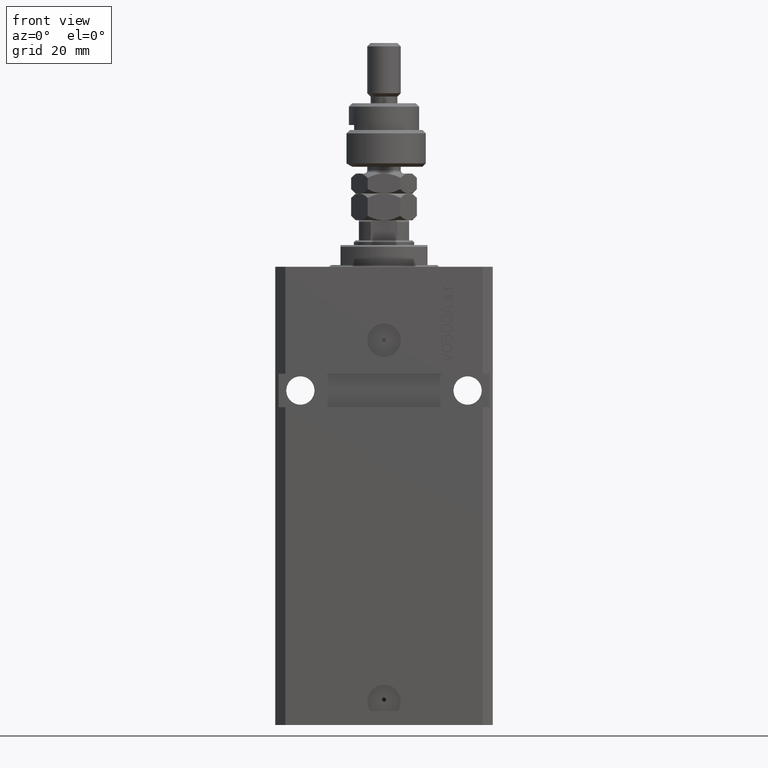
[diagram: clean part render]
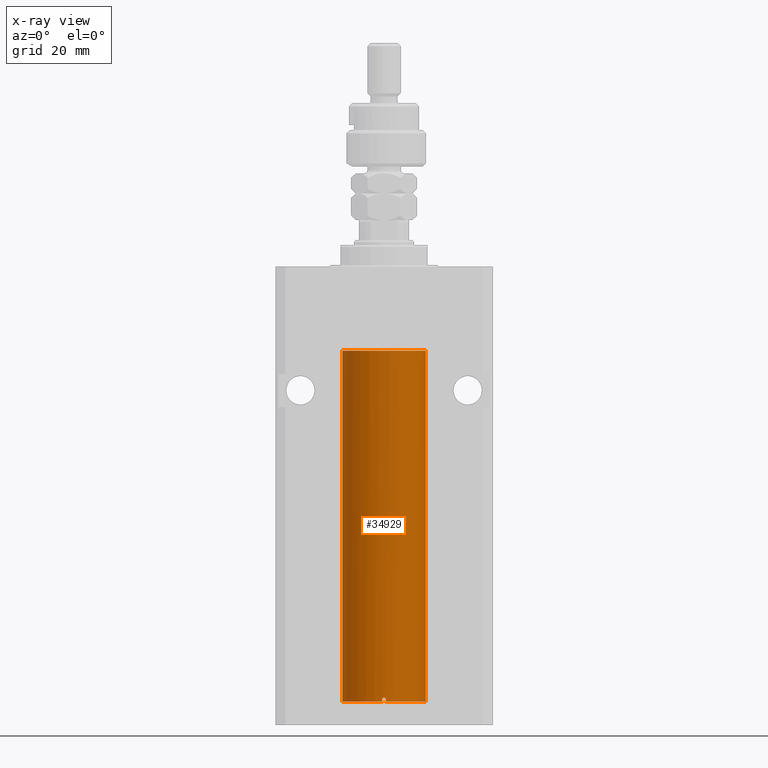
[diagram: x-ray — body ghosted, one internal face saturated and labeled with its STEP entity id]
A machine part, front view, then the same camera in x-ray: the body is ghosted and one INTERNAL B-rep face — a face not visible from any outside direction — is saturated and labeled: STEP entity #34929.
In plain terms, the highlighted cylindrical surface (partial cylindrical patch) has radius 12.5 mm, axis along (0, 0, 1).
Its self-contained STEP definition (entity closure, byte-faithful):
#670 = CARTESIAN_POINT ( 'NONE',  ( -0.5573321180045979206, -12.48810161786719419, -129.8014823860453646 ) ) ;
#1096 = CARTESIAN_POINT ( 'NONE',  ( 12.48436522214885080, -0.6250000000001766365, -125.1648435048619064 ) ) ;
#1135 = ORIENTED_EDGE ( 'NONE', *, *, #5912, .T. ) ;
#1220 = LINE ( 'NONE', #42700, #32509 ) ;
#1598 = CARTESIAN_POINT ( 'NONE',  ( 12.49626862995824261, -0.3264790874448437741, -124.4426634523339601 ) ) ;
#1618 = FACE_OUTER_BOUND ( 'NONE', #27421, .T. ) ;
#1980 = CARTESIAN_POINT ( 'NONE',  ( 0.6250000000080510043, -12.48436522214846001, -129.4749999999992269 ) ) ;
#2105 = CARTESIAN_POINT ( 'NONE',  ( -0.1650848372272809561, -12.50000000000000533, -130.0999999999999943 ) ) ;
#2337 = ORIENTED_EDGE ( 'NONE', *, *, #41780, .T. ) ;
#2365 = VERTEX_POINT ( 'NONE', #41068 ) ;
#3061 = CARTESIAN_POINT ( 'NONE',  ( 1.470104640658485388E-15, -12.50000000000000000, -130.0999999999999943 ) ) ;
#3567 = ORIENTED_EDGE ( 'NONE', *, *, #34443, .T. ) ;
#4589 = AXIS2_PLACEMENT_3D ( 'NONE', #20704, #19744, #20216 ) ;
#5007 = CARTESIAN_POINT ( 'NONE',  ( 12.48436522214885436, -0.6250000000001731948, -125.0000000000000000 ) ) ;
#5258 = B_SPLINE_CURVE_WITH_KNOTS ( 'NONE', 3,
 ( #16105, #15868, #1598, #19491, #41943, #5007 ),
 .UNSPECIFIED., .F., .F.,
 ( 4, 2, 4 ),
 ( 0.001954339881912483395, 0.002443067948757230486, 0.002931796015601977577 ),
 .UNSPECIFIED. ) ;
#5482 = CARTESIAN_POINT ( 'NONE',  ( 0.3151108292487771467, -12.49625698805481022, -130.0209369568817976 ) ) ;
#5712 = VERTEX_POINT ( 'NONE', #32192 ) ;
#5727 = B_SPLINE_CURVE_WITH_KNOTS ( 'NONE', 3,
 ( #1980, #20090, #28071, #13587, #42317, #30309, #42800, #34821, #6104, #20818, #27584, #45042 ),
 .UNSPECIFIED., .F., .F.,
 ( 4, 2, 2, 2, 2, 4 ),
 ( 0.0009773924225144152694, 0.001221692871650373541, 0.001465993320786332030, 0.001954594219058248573, 0.002443195117330164250, 0.002931796015602080793 ),
 .UNSPECIFIED. ) ;
#5797 = CARTESIAN_POINT ( 'NONE',  ( 12.50000000000000000, 5.055633433180616021E-15, -125.6250000000000142 ) ) ;
#5912 = EDGE_CURVE ( 'NONE', #17413, #8233, #1220, .T. ) ;
#6007 = DIRECTION ( 'NONE',  ( -0.000000000000000000, -0.000000000000000000, 1.000000000000000000 ) ) ;
#6104 = CARTESIAN_POINT ( 'NONE',  ( -0.3266214369556185160, -12.49626442692393802, -128.9177587996186958 ) ) ;
#6840 = CARTESIAN_POINT ( 'NONE',  ( -12.50000000000000000, -1.890568805888175348E-14, -124.3750000000000000 ) ) ;
#7064 = LINE ( 'NONE', #47611, #16391 ) ;
#7163 = VECTOR ( 'NONE', #41555, 1000.000000000000000 ) ;
#7752 = EDGE_CURVE ( 'NONE', #16243, #5712, #47229, .T. ) ;
#7953 = CIRCLE ( 'NONE', #42541, 12.50000000000000000 ) ;
#7958 = CARTESIAN_POINT ( 'NONE',  ( -0.6250000000000023315, -12.48436522214886324, -129.4749999999999943 ) ) ;
#8233 = VERTEX_POINT ( 'NONE', #32290 ) ;
#8853 = AXIS2_PLACEMENT_3D ( 'NONE', #37199, #23164, #44438 ) ;
#8941 = EDGE_CURVE ( 'NONE', #39606, #32330, #7064, .T. ) ;
#10412 = ORIENTED_EDGE ( 'NONE', *, *, #43356, .T. ) ;
#10637 = CARTESIAN_POINT ( 'NONE',  ( -12.50000000000000000, -1.890568805888175348E-14, -124.3750000000000000 ) ) ;
#11024 = CARTESIAN_POINT ( 'NONE',  ( 0.6250000000080510043, -12.48436522214846001, -129.4749999999992269 ) ) ;
#11282 = CARTESIAN_POINT ( 'NONE',  ( 12.50000000000000178, -0.1650848372273190368, -125.6250000000000426 ) ) ;
#11514 = CARTESIAN_POINT ( 'NONE',  ( 12.48810161786718709, -0.5573321180047493550, -125.3264823860453845 ) ) ;
#11894 = EDGE_CURVE ( 'NONE', #30153, #40642, #5258, .T. ) ;
#12051 = CARTESIAN_POINT ( 'NONE',  ( -12.50000000000000000, 1.530808498934191521E-15, -25.10000000000000142 ) ) ;
#12170 = CARTESIAN_POINT ( 'NONE',  ( 12.50000000000000000, 0.000000000000000000, -130.0999999999999943 ) ) ;
#12532 = VERTEX_POINT ( 'NONE', #5797 ) ;
#12666 = CARTESIAN_POINT ( 'NONE',  ( 0.6250000000080510043, -12.48436522214846001, -129.4749999999992269 ) ) ;
#13451 = CARTESIAN_POINT ( 'NONE',  ( 0.5573988467447082984, -12.48809900631781211, -129.8014014793547801 ) ) ;
#13587 = CARTESIAN_POINT ( 'NONE',  ( 0.5460961315382579784, -12.48810487413754089, -129.1601782428394074 ) ) ;
#14164 = CARTESIAN_POINT ( 'NONE',  ( 0.6250000000003168577, -12.48436522214885080, -129.6381274754031381 ) ) ;
#14249 = EDGE_CURVE ( 'NONE', #5712, #12532, #45011, .T. ) ;
#14485 = CARTESIAN_POINT ( 'NONE',  ( -12.50000000000017941, 3.883381307462307207E-13, -125.6250000000035953 ) ) ;
#14934 = ORIENTED_EDGE ( 'NONE', *, *, #34729, .T. ) ;
#15868 = CARTESIAN_POINT ( 'NONE',  ( 12.50000000000000355, -0.1632239044005757977, -124.3749999999997868 ) ) ;
#16105 = CARTESIAN_POINT ( 'NONE',  ( 12.50000000000017941, 3.868073647803008074E-13, -124.3749999999964047 ) ) ;
#16243 = VERTEX_POINT ( 'NONE', #3061 ) ;
#16391 = VECTOR ( 'NONE', #21543, 1000.000000000000000 ) ;
#16575 = B_SPLINE_CURVE_WITH_KNOTS ( 'NONE', 3,
 ( #44590, #1096, #11514, #37109, #11282, #30564 ),
 .UNSPECIFIED., .F., .F.,
 ( 4, 2, 4 ),
 ( 0.002931796015601977577, 0.003420015203430309698, 0.003908234391258641818 ),
 .UNSPECIFIED. ) ;
#16604 = CYLINDRICAL_SURFACE ( 'NONE', #4589, 12.50000000000000000 ) ;
#16673 = EDGE_CURVE ( 'NONE', #17413, #16243, #27337, .T. ) ;
#17198 = DIRECTION ( 'NONE',  ( 0.000000000000000000, 0.000000000000000000, 1.000000000000000000 ) ) ;
#17413 = VERTEX_POINT ( 'NONE', #27299 ) ;
#18637 = CARTESIAN_POINT ( 'NONE',  ( 12.50000000000000000, 0.000000000000000000, -130.0999999999999943 ) ) ;
#19491 = CARTESIAN_POINT ( 'NONE',  ( 12.48811067843434230, -0.5571444604332019823, -124.6731932189935463 ) ) ;
#19744 = DIRECTION ( 'NONE',  ( -0.000000000000000000, -0.000000000000000000, 1.000000000000000000 ) ) ;
#20090 = CARTESIAN_POINT ( 'NONE',  ( 0.6249999999998495648, -12.48436522214887034, -129.3934521701002325 ) ) ;
#20216 = DIRECTION ( 'NONE',  ( 1.000000000000000000, 0.000000000000000000, 0.000000000000000000 ) ) ;
#20682 = CARTESIAN_POINT ( 'NONE',  ( 1.470104640658485388E-15, -12.50000000000000000, -130.0999999999999943 ) ) ;
#20704 = CARTESIAN_POINT ( 'NONE',  ( 0.000000000000000000, 0.000000000000000000, -130.0999999999999943 ) ) ;
#20818 = CARTESIAN_POINT ( 'NONE',  ( -0.5571821530518588084, -12.48810851326189031, -129.1482778446419672 ) ) ;
#21053 = DIRECTION ( 'NONE',  ( 1.000000000000000000, 0.000000000000000000, 0.000000000000000000 ) ) ;
#21543 = DIRECTION ( 'NONE',  ( -0.000000000000000000, -0.000000000000000000, 1.000000000000000000 ) ) ;
#21762 = CARTESIAN_POINT ( 'NONE',  ( 0.000000000000000000, 0.000000000000000000, -25.10000000000000142 ) ) ;
#21793 = B_SPLINE_CURVE_WITH_KNOTS ( 'NONE', 3,
 ( #14485, #43704, #28975, #36219, #32597, #47558, #24632, #29207, #25582, #10637 ),
 .UNSPECIFIED., .F., .F.,
 ( 4, 2, 2, 2, 4 ),
 ( 0.001954339881912777865, 0.002442813509249231168, 0.002931287136585684037, 0.003419760763922137341, 0.003908234391258590644 ),
 .UNSPECIFIED. ) ;
#23164 = DIRECTION ( 'NONE',  ( 0.000000000000000000, 0.000000000000000000, 1.000000000000000000 ) ) ;
#23218 = CARTESIAN_POINT ( 'NONE',  ( 0.000000000000000000, 0.000000000000000000, -130.0999999999999943 ) ) ;
#23820 = CARTESIAN_POINT ( 'NONE',  ( 0.08262306818363997218, -12.50000000000000178, -130.1000000000000227 ) ) ;
#23830 = ORIENTED_EDGE ( 'NONE', *, *, #11894, .T. ) ;
#24632 = CARTESIAN_POINT ( 'NONE',  ( -12.48809300548636081, -0.5575284115737683122, -124.6738082297086123 ) ) ;
#25582 = CARTESIAN_POINT ( 'NONE',  ( -12.50000000000000178, -0.1651708725693049051, -124.3750000000000000 ) ) ;
#26390 = AXIS2_PLACEMENT_3D ( 'NONE', #23218, #38669, #45669 ) ;
#26823 = LINE ( 'NONE', #18637, #7163 ) ;
#27299 = CARTESIAN_POINT ( 'NONE',  ( -12.50000000000000000, 1.530808498934191521E-15, -130.0999999999999943 ) ) ;
#27337 = CIRCLE ( 'NONE', #8853, 12.50000000000000000 ) ;
#27421 = EDGE_LOOP ( 'NONE', ( #41722, #1135, #14934, #47792, #10412, #33538, #23830, #44623, #35746, #35828, #2337, #3567, #28532 ) ) ;
#27462 = CARTESIAN_POINT ( 'NONE',  ( 1.470104640658485388E-15, -12.50000000000000000, -130.0999999999999943 ) ) ;
#27584 = CARTESIAN_POINT ( 'NONE',  ( -0.6250000000000021094, -12.48436522214886146, -129.3100276135026832 ) ) ;
#28055 = VECTOR ( 'NONE', #33677, 1000.000000000000000 ) ;
#28071 = CARTESIAN_POINT ( 'NONE',  ( 0.6087772866342663347, -12.48520622767670396, -129.3115254180584088 ) ) ;
#28532 = ORIENTED_EDGE ( 'NONE', *, *, #30508, .T. ) ;
#28975 = CARTESIAN_POINT ( 'NONE',  ( -12.49627279065598628, -0.3263143231498909502, -125.5574072589037371 ) ) ;
#29207 = CARTESIAN_POINT ( 'NONE',  ( -12.49625500642807729, -0.3269795983093208847, -124.4429332688023351 ) ) ;
#30153 = VERTEX_POINT ( 'NONE', #44447 ) ;
#30309 = CARTESIAN_POINT ( 'NONE',  ( 0.3251408448057627743, -12.49631649875954409, -128.9162955772238206 ) ) ;
#30508 = EDGE_CURVE ( 'NONE', #31849, #16243, #47429, .T. ) ;
#30564 = CARTESIAN_POINT ( 'NONE',  ( 12.50000000000000000, 5.055633433180616021E-15, -125.6250000000000142 ) ) ;
#31849 = VERTEX_POINT ( 'NONE', #43597 ) ;
#32192 = CARTESIAN_POINT ( 'NONE',  ( 12.50000000000000000, 0.000000000000000000, -130.0999999999999943 ) ) ;
#32290 = CARTESIAN_POINT ( 'NONE',  ( -12.50000000000017941, 3.883381307462307207E-13, -125.6250000000035953 ) ) ;
#32330 = VERTEX_POINT ( 'NONE', #12051 ) ;
#32509 = VECTOR ( 'NONE', #6007, 1000.000000000000000 ) ;
#32597 = CARTESIAN_POINT ( 'NONE',  ( -12.48437204107163012, -0.6248637920779658295, -125.1654228524065360 ) ) ;
#33538 = ORIENTED_EDGE ( 'NONE', *, *, #45685, .F. ) ;
#33677 = DIRECTION ( 'NONE',  ( -0.000000000000000000, -0.000000000000000000, 1.000000000000000000 ) ) ;
#34443 = EDGE_CURVE ( 'NONE', #42087, #31849, #5727, .T. ) ;
#34470 = CARTESIAN_POINT ( 'NONE',  ( -0.3268155536464767974, -12.49625914831440454, -130.0321368162777560 ) ) ;
#34729 = EDGE_CURVE ( 'NONE', #8233, #39606, #21793, .T. ) ;
#34821 = CARTESIAN_POINT ( 'NONE',  ( -0.1634321124498667177, -12.49999667087055322, -128.8500665825944793 ) ) ;
#34929 = ADVANCED_FACE ( 'NONE', ( #1618 ), #16604, .F. ) ;
#35746 = ORIENTED_EDGE ( 'NONE', *, *, #14249, .F. ) ;
#35828 = ORIENTED_EDGE ( 'NONE', *, *, #7752, .F. ) ;
#36219 = CARTESIAN_POINT ( 'NONE',  ( -12.48811925907523879, -0.5569488909189619363, -125.3270960450317801 ) ) ;
#36392 = EDGE_CURVE ( 'NONE', #40642, #12532, #16575, .T. ) ;
#37109 = CARTESIAN_POINT ( 'NONE',  ( 12.49625914831439744, -0.3268155536465562339, -125.5571368162777475 ) ) ;
#37199 = CARTESIAN_POINT ( 'NONE',  ( 0.000000000000000000, 0.000000000000000000, -130.0999999999999943 ) ) ;
#37394 = CARTESIAN_POINT ( 'NONE',  ( -0.6250000000000024425, -12.48436522214886502, -129.6398435048618865 ) ) ;
#38544 = CARTESIAN_POINT ( 'NONE',  ( 0.1636982395582852745, -12.49915742890631876, -130.0837239784702888 ) ) ;
#38669 = DIRECTION ( 'NONE',  ( 0.000000000000000000, 0.000000000000000000, 1.000000000000000000 ) ) ;
#39606 = VERTEX_POINT ( 'NONE', #6840 ) ;
#40642 = VERTEX_POINT ( 'NONE', #40802 ) ;
#40802 = CARTESIAN_POINT ( 'NONE',  ( 12.48436522214885436, -0.6250000000001731948, -125.0000000000000000 ) ) ;
#41068 = CARTESIAN_POINT ( 'NONE',  ( 12.50000000000000000, 0.000000000000000000, -25.10000000000000142 ) ) ;
#41555 = DIRECTION ( 'NONE',  ( -0.000000000000000000, -0.000000000000000000, 1.000000000000000000 ) ) ;
#41722 = ORIENTED_EDGE ( 'NONE', *, *, #16673, .F. ) ;
#41780 = EDGE_CURVE ( 'NONE', #16243, #42087, #45756, .T. ) ;
#41943 = CARTESIAN_POINT ( 'NONE',  ( 12.48436522214885613, -0.6250000000001694200, -124.8349846759988822 ) ) ;
#42087 = VERTEX_POINT ( 'NONE', #12666 ) ;
#42317 = CARTESIAN_POINT ( 'NONE',  ( 0.5002336959535143013, -12.49012317397092531, -129.0913311327716144 ) ) ;
#42541 = AXIS2_PLACEMENT_3D ( 'NONE', #21762, #17198, #21053 ) ;
#42700 = CARTESIAN_POINT ( 'NONE',  ( -12.50000000000000000, 1.530808498934191521E-15, -130.0999999999999943 ) ) ;
#42800 = CARTESIAN_POINT ( 'NONE',  ( 0.1629224624750996719, -12.50000332393458891, -128.8499335213027450 ) ) ;
#43356 = EDGE_CURVE ( 'NONE', #32330, #2365, #7953, .T. ) ;
#43597 = CARTESIAN_POINT ( 'NONE',  ( -0.6250000000000023315, -12.48436522214886324, -129.4749999999999943 ) ) ;
#43704 = CARTESIAN_POINT ( 'NONE',  ( -12.50000000000000178, -0.1631389274721005422, -125.6250000000001847 ) ) ;
#44438 = DIRECTION ( 'NONE',  ( 1.000000000000000000, 0.000000000000000000, 0.000000000000000000 ) ) ;
#44447 = CARTESIAN_POINT ( 'NONE',  ( 12.50000000000017941, 3.868073647803008074E-13, -124.3749999999964047 ) ) ;
#44590 = CARTESIAN_POINT ( 'NONE',  ( 12.48436522214885436, -0.6250000000001731948, -125.0000000000000000 ) ) ;
#44623 = ORIENTED_EDGE ( 'NONE', *, *, #36392, .T. ) ;
#45011 = LINE ( 'NONE', #12170, #28055 ) ;
#45042 = CARTESIAN_POINT ( 'NONE',  ( -0.6250000000000023315, -12.48436522214886324, -129.4749999999999943 ) ) ;
#45669 = DIRECTION ( 'NONE',  ( 1.000000000000000000, 0.000000000000000000, 0.000000000000000000 ) ) ;
#45685 = EDGE_CURVE ( 'NONE', #30153, #2365, #26823, .T. ) ;
#45756 = B_SPLINE_CURVE_WITH_KNOTS ( 'NONE', 3,
 ( #20682, #23820, #38544, #5482, #46521, #13451, #14164, #11024 ),
 .UNSPECIFIED., .F., .F.,
 ( 4, 2, 2, 4 ),
 ( 0.000000000000000000, 0.0002443481056286184541, 0.0004886962112572370166, 0.0009773924225144152694 ),
 .UNSPECIFIED. ) ;
#46521 = CARTESIAN_POINT ( 'NONE',  ( 0.3844519291904531233, -12.49421963472024721, -129.9744730364705845 ) ) ;
#47229 = CIRCLE ( 'NONE', #26390, 12.50000000000000000 ) ;
#47429 = B_SPLINE_CURVE_WITH_KNOTS ( 'NONE', 3,
 ( #7958, #37394, #670, #34470, #2105, #27462 ),
 .UNSPECIFIED., .F., .F.,
 ( 4, 2, 4 ),
 ( 0.002931796015602080360, 0.003420015203430315336, 0.003908234391258549878 ),
 .UNSPECIFIED. ) ;
#47558 = CARTESIAN_POINT ( 'NONE',  ( -12.48435842450558297, -0.6251357828645137671, -124.8356079937140208 ) ) ;
#47611 = CARTESIAN_POINT ( 'NONE',  ( -12.50000000000000000, 1.530808498934191521E-15, -130.0999999999999943 ) ) ;
#47792 = ORIENTED_EDGE ( 'NONE', *, *, #8941, .T. ) ;